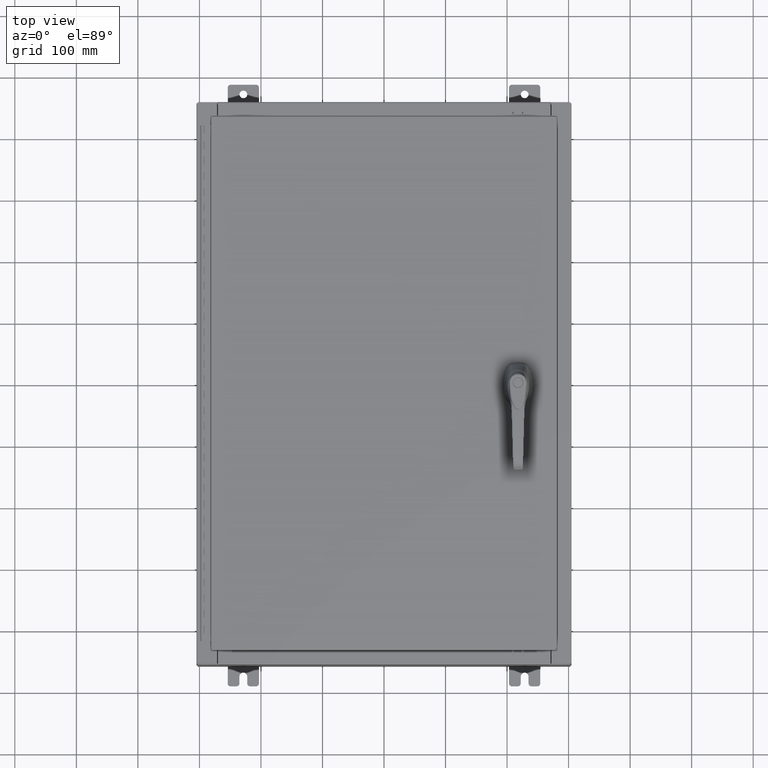
[diagram: clean part render]
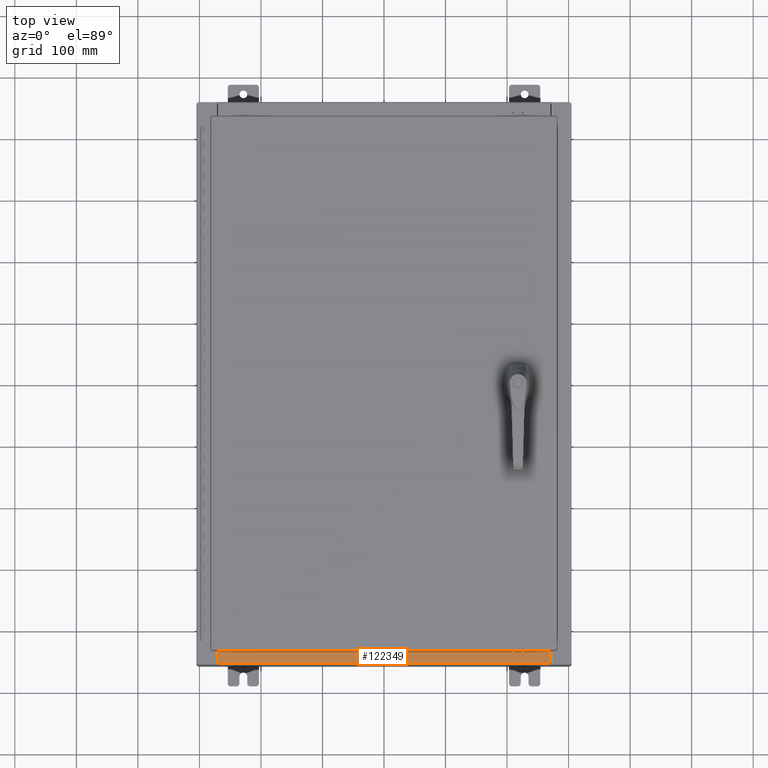
[diagram: same view with one face highlighted and labeled with its STEP entity id]
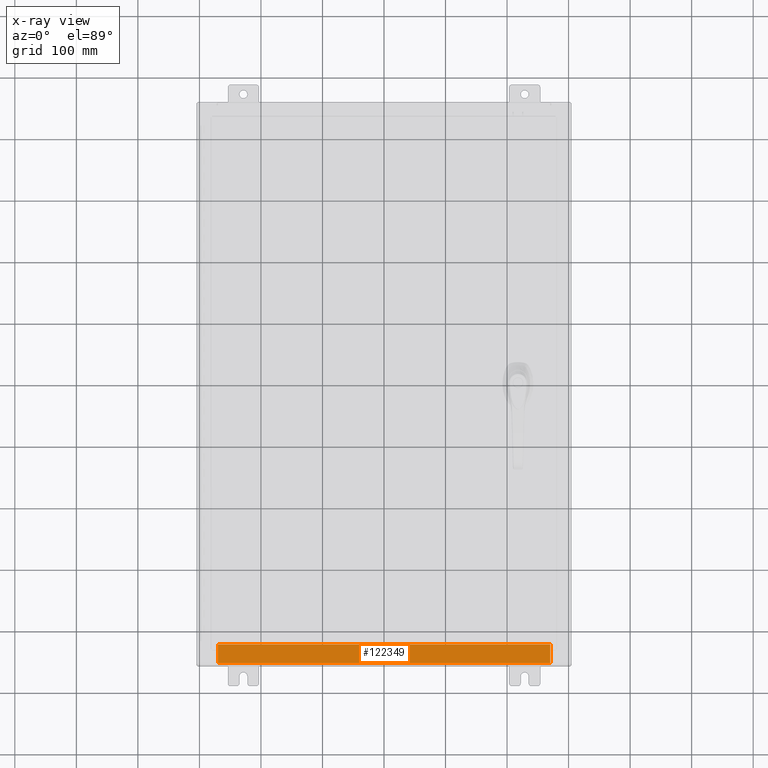
[diagram: x-ray of the same camera — body ghosted, the highlighted face saturated]
A machine part, top view. The second image highlights one B-rep face of the part: STEP entity #122349.
The next image is the same camera in x-ray: the body ghosted, the highlighted face saturated — about 0% of this face is hidden behind the body in this view.
In plain terms, the highlighted planar face has unit normal (-0, -0, 1).
Its self-contained STEP definition (entity closure, byte-faithful):
#4091 = VERTEX_POINT ( 'NONE', #104515 ) ;
#5152 = CARTESIAN_POINT ( 'NONE',  ( 10.63720000000000400, -1.287299999999999900, 4.000000000000003600 ) ) ;
#11252 = DIRECTION ( 'NONE',  ( -0.0000000000000000000, 1.000000000000000000, -3.566381192773190000E-015 ) ) ;
#14711 = DIRECTION ( 'NONE',  ( -1.000000000000000000, 0.0000000000000000000, 0.0000000000000000000 ) ) ;
#23335 = VERTEX_POINT ( 'NONE', #39569 ) ;
#23437 = LINE ( 'NONE', #5152, #70838 ) ;
#27832 = ORIENTED_EDGE ( 'NONE', *, *, #32957, .T. ) ;
#32957 = EDGE_CURVE ( 'NONE', #90441, #23335, #91407, .T. ) ;
#37691 = EDGE_LOOP ( 'NONE', ( #99727, #69211, #47688, #27832 ) ) ;
#38283 = EDGE_CURVE ( 'NONE', #4091, #23335, #67336, .T. ) ;
#39569 = CARTESIAN_POINT ( 'NONE',  ( -10.63720000000000200, -0.08770000000000000000, 4.000000000000000000 ) ) ;
#40271 = VECTOR ( 'NONE', #72887, 39.37007874015748100 ) ;
#40960 = EDGE_CURVE ( 'NONE', #90441, #119739, #96806, .T. ) ;
#42172 = VECTOR ( 'NONE', #11252, 39.37007874015748100 ) ;
#47688 = ORIENTED_EDGE ( 'NONE', *, *, #40960, .F. ) ;
#51806 = DIRECTION ( 'NONE',  ( 0.0000000000000000000, -1.000000000000000000, 3.566381192773190000E-015 ) ) ;
#52108 = CARTESIAN_POINT ( 'NONE',  ( 10.63720000000000200, -1.287299999999999900, 4.000000000000004400 ) ) ;
#53954 = DIRECTION ( 'NONE',  ( -1.000000000000000000, 2.568202152506545800E-017, -9.159187855938968600E-032 ) ) ;
#60675 = FACE_OUTER_BOUND ( 'NONE', #37691, .T. ) ;
#63351 = CARTESIAN_POINT ( 'NONE',  ( 10.63720000000000200, -1.300299999999999800, 4.000000000000004400 ) ) ;
#67336 = LINE ( 'NONE', #67578, #42172 ) ;
#67578 = CARTESIAN_POINT ( 'NONE',  ( -10.63720000000000200, -0.07469999999999973900, 4.000000000000000000 ) ) ;
#69211 = ORIENTED_EDGE ( 'NONE', *, *, #94850, .F. ) ;
#70423 = CARTESIAN_POINT ( 'NONE',  ( 0.0000000000000000000, 1.425992975200418500E-014, 4.000000000000000000 ) ) ;
#70838 = VECTOR ( 'NONE', #14711, 39.37007874015748100 ) ;
#72887 = DIRECTION ( 'NONE',  ( -0.0000000000000000000, -1.000000000000000000, 3.566381192773190000E-015 ) ) ;
#80012 = PLANE ( 'NONE',  #96241 ) ;
#82367 = VECTOR ( 'NONE', #53954, 39.37007874015748100 ) ;
#90441 = VERTEX_POINT ( 'NONE', #99137 ) ;
#91407 = LINE ( 'NONE', #109404, #82367 ) ;
#94850 = EDGE_CURVE ( 'NONE', #119739, #4091, #23437, .T. ) ;
#96241 = AXIS2_PLACEMENT_3D ( 'NONE', #70423, #108895, #51806 ) ;
#96806 = LINE ( 'NONE', #63351, #40271 ) ;
#99137 = CARTESIAN_POINT ( 'NONE',  ( 10.63720000000000400, -0.08769999999999965300, 4.000000000000000000 ) ) ;
#99727 = ORIENTED_EDGE ( 'NONE', *, *, #38283, .F. ) ;
#104515 = CARTESIAN_POINT ( 'NONE',  ( -10.63720000000000200, -1.287299999999999200, 4.000000000000004400 ) ) ;
#108895 = DIRECTION ( 'NONE',  ( 0.0000000000000000000, 3.566381192773190000E-015, 1.000000000000000000 ) ) ;
#109404 = CARTESIAN_POINT ( 'NONE',  ( -2.252313287748606700E-018, -0.08770000000000000000, 4.000000000000000900 ) ) ;
#119739 = VERTEX_POINT ( 'NONE', #52108 ) ;
#122349 = ADVANCED_FACE ( 'NONE', ( #60675 ), #80012, .T. ) ;